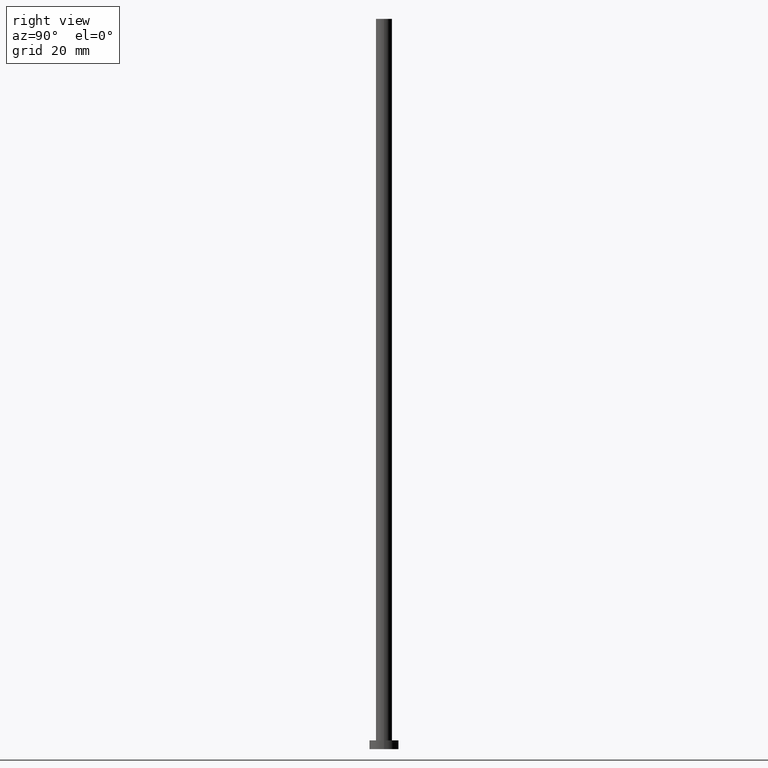
[diagram: clean part render]
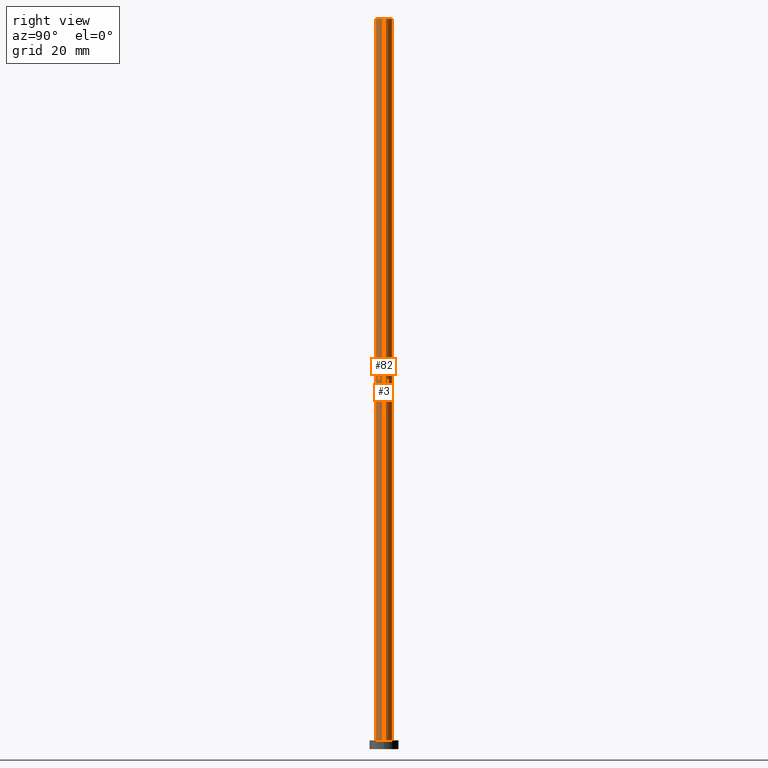
[diagram: same view with one multi-face feature highlighted, each face labeled with its STEP entity id]
A machine part, right view. The highlighted faces form ONE feature: a constant-radius fillet chain: 2 tangent blend faces with common blend radius 2.75 mm. The faces share edges in the B-rep.
Their STEP definitions:
[1] entity #3 (Cylinder):
#3 = ADVANCED_FACE ( 'NONE', ( #222 ), #41, .T. ) ;
#7 = CARTESIAN_POINT ( 'NONE',  ( 2.750000000000000000, 3.367778697655221012E-16, 250.0000000000000000 ) ) ;
#20 = DIRECTION ( 'NONE',  ( 0.000000000000000000, 0.000000000000000000, 1.000000000000000000 ) ) ;
#22 = EDGE_CURVE ( 'NONE', #111, #88, #135, .T. ) ;
#29 = DIRECTION ( 'NONE',  ( 0.000000000000000000, 0.000000000000000000, 1.000000000000000000 ) ) ;
#41 = CYLINDRICAL_SURFACE ( 'NONE', #45, 2.750000000000000000 ) ;
#45 = AXIS2_PLACEMENT_3D ( 'NONE', #131, #209, #165 ) ;
#47 = CARTESIAN_POINT ( 'NONE',  ( 2.750000000000000000, 3.367778697655221012E-16, 250.0000000000000000 ) ) ;
#48 = ORIENTED_EDGE ( 'NONE', *, *, #130, .F. ) ;
#62 = LINE ( 'NONE', #7, #203 ) ;
#67 = VERTEX_POINT ( 'NONE', #47 ) ;
#71 = CARTESIAN_POINT ( 'NONE',  ( -2.750000000000000000, 0.000000000000000000, 250.0000000000000000 ) ) ;
#78 = EDGE_CURVE ( 'NONE', #67, #111, #62, .T. ) ;
#88 = VERTEX_POINT ( 'NONE', #177 ) ;
#93 = VECTOR ( 'NONE', #153, 1000.000000000000000 ) ;
#111 = VERTEX_POINT ( 'NONE', #212 ) ;
#118 = CARTESIAN_POINT ( 'NONE',  ( -2.750000000000000000, 0.000000000000000000, 250.0000000000000000 ) ) ;
#120 = DIRECTION ( 'NONE',  ( 1.000000000000000000, 0.000000000000000000, 0.000000000000000000 ) ) ;
#122 = CARTESIAN_POINT ( 'NONE',  ( 0.000000000000000000, 0.000000000000000000, 3.000000000000000000 ) ) ;
#130 = EDGE_CURVE ( 'NONE', #188, #88, #249, .T. ) ;
#131 = CARTESIAN_POINT ( 'NONE',  ( 0.000000000000000000, 0.000000000000000000, 250.0000000000000000 ) ) ;
#135 = CIRCLE ( 'NONE', #172, 2.750000000000000000 ) ;
#147 = DIRECTION ( 'NONE',  ( 1.000000000000000000, 0.000000000000000000, 0.000000000000000000 ) ) ;
#153 = DIRECTION ( 'NONE',  ( -0.000000000000000000, -0.000000000000000000, -1.000000000000000000 ) ) ;
#165 = DIRECTION ( 'NONE',  ( -1.000000000000000000, 0.000000000000000000, 0.000000000000000000 ) ) ;
#167 = AXIS2_PLACEMENT_3D ( 'NONE', #179, #20, #120 ) ;
#168 = EDGE_LOOP ( 'NONE', ( #232, #244, #183, #48 ) ) ;
#172 = AXIS2_PLACEMENT_3D ( 'NONE', #122, #29, #147 ) ;
#177 = CARTESIAN_POINT ( 'NONE',  ( -2.750000000000000000, 0.000000000000000000, 3.000000000000000000 ) ) ;
#179 = CARTESIAN_POINT ( 'NONE',  ( 0.000000000000000000, 0.000000000000000000, 250.0000000000000000 ) ) ;
#183 = ORIENTED_EDGE ( 'NONE', *, *, #22, .T. ) ;
#188 = VERTEX_POINT ( 'NONE', #118 ) ;
#194 = CIRCLE ( 'NONE', #167, 2.750000000000000000 ) ;
#203 = VECTOR ( 'NONE', #224, 1000.000000000000000 ) ;
#209 = DIRECTION ( 'NONE',  ( -0.000000000000000000, -0.000000000000000000, -1.000000000000000000 ) ) ;
#212 = CARTESIAN_POINT ( 'NONE',  ( 2.750000000000000000, 3.367778697655221012E-16, 3.000000000000000000 ) ) ;
#219 = EDGE_CURVE ( 'NONE', #67, #188, #194, .T. ) ;
#222 = FACE_OUTER_BOUND ( 'NONE', #168, .T. ) ;
#224 = DIRECTION ( 'NONE',  ( -0.000000000000000000, -0.000000000000000000, -1.000000000000000000 ) ) ;
#232 = ORIENTED_EDGE ( 'NONE', *, *, #219, .F. ) ;
#244 = ORIENTED_EDGE ( 'NONE', *, *, #78, .T. ) ;
#249 = LINE ( 'NONE', #71, #93 ) ;
[2] entity #82 (Cylinder):
#7 = CARTESIAN_POINT ( 'NONE',  ( 2.750000000000000000, 3.367778697655221012E-16, 250.0000000000000000 ) ) ;
#23 = CYLINDRICAL_SURFACE ( 'NONE', #192, 2.750000000000000000 ) ;
#35 = DIRECTION ( 'NONE',  ( 1.000000000000000000, 0.000000000000000000, 0.000000000000000000 ) ) ;
#40 = AXIS2_PLACEMENT_3D ( 'NONE', #80, #158, #35 ) ;
#42 = FACE_OUTER_BOUND ( 'NONE', #46, .T. ) ;
#46 = EDGE_LOOP ( 'NONE', ( #184, #103, #64, #166 ) ) ;
#47 = CARTESIAN_POINT ( 'NONE',  ( 2.750000000000000000, 3.367778697655221012E-16, 250.0000000000000000 ) ) ;
#50 = CIRCLE ( 'NONE', #152, 2.750000000000000000 ) ;
#54 = DIRECTION ( 'NONE',  ( -1.000000000000000000, 0.000000000000000000, 0.000000000000000000 ) ) ;
#62 = LINE ( 'NONE', #7, #203 ) ;
#64 = ORIENTED_EDGE ( 'NONE', *, *, #130, .T. ) ;
#67 = VERTEX_POINT ( 'NONE', #47 ) ;
#71 = CARTESIAN_POINT ( 'NONE',  ( -2.750000000000000000, 0.000000000000000000, 250.0000000000000000 ) ) ;
#78 = EDGE_CURVE ( 'NONE', #67, #111, #62, .T. ) ;
#80 = CARTESIAN_POINT ( 'NONE',  ( 0.000000000000000000, 0.000000000000000000, 3.000000000000000000 ) ) ;
#82 = ADVANCED_FACE ( 'NONE', ( #42 ), #23, .T. ) ;
#88 = VERTEX_POINT ( 'NONE', #177 ) ;
#93 = VECTOR ( 'NONE', #153, 1000.000000000000000 ) ;
#96 = DIRECTION ( 'NONE',  ( 0.000000000000000000, 0.000000000000000000, 1.000000000000000000 ) ) ;
#98 = CIRCLE ( 'NONE', #40, 2.750000000000000000 ) ;
#103 = ORIENTED_EDGE ( 'NONE', *, *, #113, .F. ) ;
#111 = VERTEX_POINT ( 'NONE', #212 ) ;
#113 = EDGE_CURVE ( 'NONE', #188, #67, #50, .T. ) ;
#118 = CARTESIAN_POINT ( 'NONE',  ( -2.750000000000000000, 0.000000000000000000, 250.0000000000000000 ) ) ;
#130 = EDGE_CURVE ( 'NONE', #188, #88, #249, .T. ) ;
#137 = CARTESIAN_POINT ( 'NONE',  ( 0.000000000000000000, 0.000000000000000000, 250.0000000000000000 ) ) ;
#152 = AXIS2_PLACEMENT_3D ( 'NONE', #252, #96, #171 ) ;
#153 = DIRECTION ( 'NONE',  ( -0.000000000000000000, -0.000000000000000000, -1.000000000000000000 ) ) ;
#158 = DIRECTION ( 'NONE',  ( 0.000000000000000000, 0.000000000000000000, 1.000000000000000000 ) ) ;
#166 = ORIENTED_EDGE ( 'NONE', *, *, #242, .T. ) ;
#171 = DIRECTION ( 'NONE',  ( 1.000000000000000000, 0.000000000000000000, 0.000000000000000000 ) ) ;
#177 = CARTESIAN_POINT ( 'NONE',  ( -2.750000000000000000, 0.000000000000000000, 3.000000000000000000 ) ) ;
#184 = ORIENTED_EDGE ( 'NONE', *, *, #78, .F. ) ;
#188 = VERTEX_POINT ( 'NONE', #118 ) ;
#192 = AXIS2_PLACEMENT_3D ( 'NONE', #137, #216, #54 ) ;
#203 = VECTOR ( 'NONE', #224, 1000.000000000000000 ) ;
#212 = CARTESIAN_POINT ( 'NONE',  ( 2.750000000000000000, 3.367778697655221012E-16, 3.000000000000000000 ) ) ;
#216 = DIRECTION ( 'NONE',  ( -0.000000000000000000, -0.000000000000000000, -1.000000000000000000 ) ) ;
#224 = DIRECTION ( 'NONE',  ( -0.000000000000000000, -0.000000000000000000, -1.000000000000000000 ) ) ;
#242 = EDGE_CURVE ( 'NONE', #88, #111, #98, .T. ) ;
#249 = LINE ( 'NONE', #71, #93 ) ;
#252 = CARTESIAN_POINT ( 'NONE',  ( 0.000000000000000000, 0.000000000000000000, 250.0000000000000000 ) ) ;